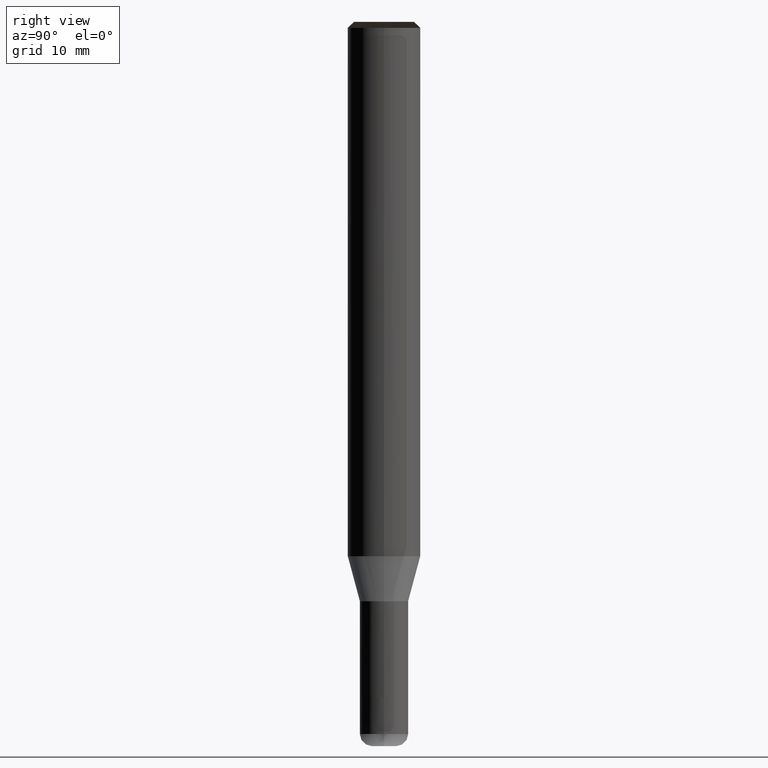
[diagram: clean part render]
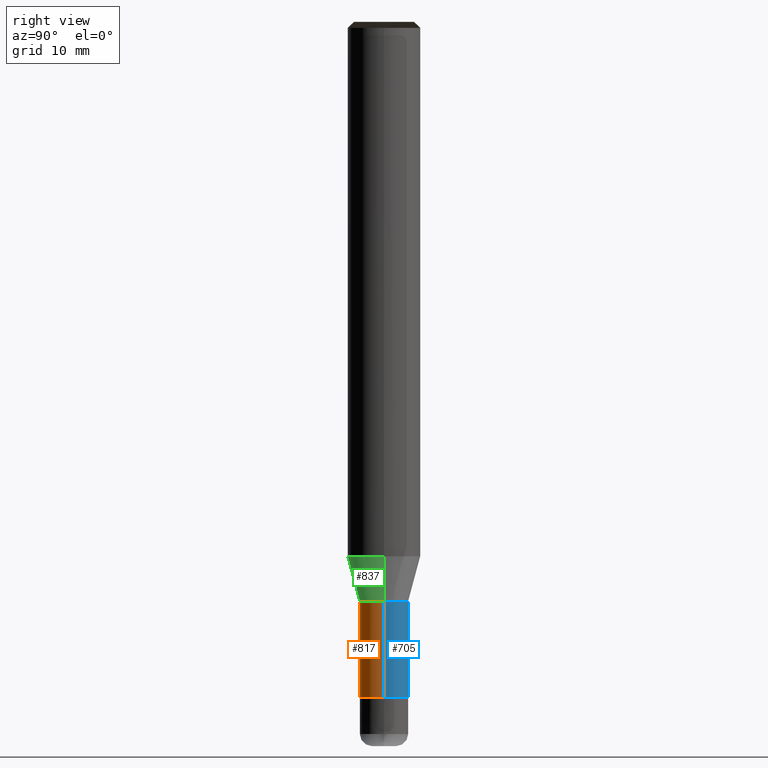
[diagram: same view with three faces highlighted in distinct colors, each labeled with its STEP entity id]
A machine part, right view with three faces highlighted in distinct colors.
Their STEP definitions:

[orange] entity #817 — the highlighted face is a freeform B-spline surface patch.
#464=CARTESIAN_POINT('',(2.0,0.0,-11.732050807569));
#468=CARTESIAN_POINT('',(-2.0,0.0,-11.732050807569));
#479=CARTESIAN_POINT('',(-2.0,-2.0,-11.732050807569));
#480=CARTESIAN_POINT('',(0.0,-2.0,-11.732050807569));
#481=CARTESIAN_POINT('',(2.0,-2.0,-11.732050807569));
#482=CARTESIAN_POINT('',(2.0,0.0,-3.732050807569));
#486=CARTESIAN_POINT('',(-2.0,0.0,-3.732050807569));
#503=CARTESIAN_POINT('',(-2.0,-2.0,-3.732050807569));
#504=CARTESIAN_POINT('',(0.0,-2.0,-3.732050807569));
#505=CARTESIAN_POINT('',(2.0,-2.0,-3.732050807569));
#798=(
BOUNDED_SURFACE()
B_SPLINE_SURFACE(1,2,(
(#468,#479,#480,#481,#464),
(#486,#503,#504,#505,#482)
), .UNSPECIFIED.,.F.,.F.,.F.)
B_SPLINE_SURFACE_WITH_KNOTS((2,2),(3,2,3),(
0.0,1.0),(
0.0,0.5,1.0), .UNSPECIFIED.)
GEOMETRIC_REPRESENTATION_ITEM()
RATIONAL_B_SPLINE_SURFACE(((1.0,0.707106781187,1.0,0.707106781187,1.0),
(1.0,0.707106781187,1.0,0.707106781187,1.0)
))
REPRESENTATION_ITEM('')
SURFACE()
);
#799=(
BOUNDED_CURVE()
B_SPLINE_CURVE(1,(#486,#468),.UNSPECIFIED.,.F.,.F.)
B_SPLINE_CURVE_WITH_KNOTS((2,2),
(0.0,1.0),.UNSPECIFIED.)
CURVE()
GEOMETRIC_REPRESENTATION_ITEM()
RATIONAL_B_SPLINE_CURVE((1.0,1.0))
REPRESENTATION_ITEM('')
);
#800=(
BOUNDED_CURVE()
B_SPLINE_CURVE(2,(#468,#479,#480,#481,#464),.UNSPECIFIED.,.F.,.F.)
B_SPLINE_CURVE_WITH_KNOTS((3,2,3),
(0.0,0.5,1.0),.UNSPECIFIED.)
CURVE()
GEOMETRIC_REPRESENTATION_ITEM()
RATIONAL_B_SPLINE_CURVE((1.0,0.707106781187,1.0,0.707106781187,1.0))
REPRESENTATION_ITEM('')
);
#801=(
BOUNDED_CURVE()
B_SPLINE_CURVE(1,(#464,#482),.UNSPECIFIED.,.F.,.F.)
B_SPLINE_CURVE_WITH_KNOTS((2,2),
(0.0,1.0),.UNSPECIFIED.)
CURVE()
GEOMETRIC_REPRESENTATION_ITEM()
RATIONAL_B_SPLINE_CURVE((1.0,1.0))
REPRESENTATION_ITEM('')
);
#802=(
BOUNDED_CURVE()
B_SPLINE_CURVE(2,(#482,#505,#504,#503,#486),.UNSPECIFIED.,.F.,.F.)
B_SPLINE_CURVE_WITH_KNOTS((3,2,3),
(0.0,0.5,1.0),.UNSPECIFIED.)
CURVE()
GEOMETRIC_REPRESENTATION_ITEM()
RATIONAL_B_SPLINE_CURVE((1.0,0.707106781187,1.0,0.707106781187,1.0))
REPRESENTATION_ITEM('')
);
#803=VERTEX_POINT('',#464);
#804=VERTEX_POINT('',#468);
#805=VERTEX_POINT('',#482);
#806=VERTEX_POINT('',#486);
#807=EDGE_CURVE('',#806,#804,#799,.T.);
#808=EDGE_CURVE('',#804,#803,#800,.T.);
#809=EDGE_CURVE('',#803,#805,#801,.T.);
#810=EDGE_CURVE('',#805,#806,#802,.T.);
#811=ORIENTED_EDGE('',*,*,#807,.T.);
#812=ORIENTED_EDGE('',*,*,#808,.T.);
#813=ORIENTED_EDGE('',*,*,#809,.T.);
#814=ORIENTED_EDGE('',*,*,#810,.T.);
#815=EDGE_LOOP('',(#811,#812,#813,#814));
#816=FACE_OUTER_BOUND('',#815,.T.);
#817=ADVANCED_FACE('',(#816),#798,.T.);

[blue] entity #705 — the highlighted face is a freeform B-spline surface patch.
#464=CARTESIAN_POINT('',(2.0,0.0,-11.732050807569));
#465=CARTESIAN_POINT('',(2.0,2.0,-11.732050807569));
#466=CARTESIAN_POINT('',(0.0,2.0,-11.732050807569));
#467=CARTESIAN_POINT('',(-2.0,2.0,-11.732050807569));
#468=CARTESIAN_POINT('',(-2.0,0.0,-11.732050807569));
#482=CARTESIAN_POINT('',(2.0,0.0,-3.732050807569));
#483=CARTESIAN_POINT('',(2.0,2.0,-3.732050807569));
#484=CARTESIAN_POINT('',(0.0,2.0,-3.732050807569));
#485=CARTESIAN_POINT('',(-2.0,2.0,-3.732050807569));
#486=CARTESIAN_POINT('',(-2.0,0.0,-3.732050807569));
#686=(
BOUNDED_SURFACE()
B_SPLINE_SURFACE(1,2,(
(#464,#465,#466,#467,#468),
(#482,#483,#484,#485,#486)
), .UNSPECIFIED.,.F.,.F.,.F.)
B_SPLINE_SURFACE_WITH_KNOTS((2,2),(3,2,3),(
0.0,1.0),(
0.0,0.5,1.0), .UNSPECIFIED.)
GEOMETRIC_REPRESENTATION_ITEM()
RATIONAL_B_SPLINE_SURFACE(((1.0,0.707106781187,1.0,0.707106781187,1.0),
(1.0,0.707106781187,1.0,0.707106781187,1.0)
))
REPRESENTATION_ITEM('')
SURFACE()
);
#687=(
BOUNDED_CURVE()
B_SPLINE_CURVE(2,(#482,#483,#484,#485,#486),.UNSPECIFIED.,.F.,.F.)
B_SPLINE_CURVE_WITH_KNOTS((3,2,3),
(0.0,0.5,1.0),.UNSPECIFIED.)
CURVE()
GEOMETRIC_REPRESENTATION_ITEM()
RATIONAL_B_SPLINE_CURVE((1.0,0.707106781187,1.0,0.707106781187,1.0))
REPRESENTATION_ITEM('')
);
#688=(
BOUNDED_CURVE()
B_SPLINE_CURVE(1,(#486,#468),.UNSPECIFIED.,.F.,.F.)
B_SPLINE_CURVE_WITH_KNOTS((2,2),
(0.0,1.0),.UNSPECIFIED.)
CURVE()
GEOMETRIC_REPRESENTATION_ITEM()
RATIONAL_B_SPLINE_CURVE((1.0,1.0))
REPRESENTATION_ITEM('')
);
#689=(
BOUNDED_CURVE()
B_SPLINE_CURVE(2,(#468,#467,#466,#465,#464),.UNSPECIFIED.,.F.,.F.)
B_SPLINE_CURVE_WITH_KNOTS((3,2,3),
(0.0,0.5,1.0),.UNSPECIFIED.)
CURVE()
GEOMETRIC_REPRESENTATION_ITEM()
RATIONAL_B_SPLINE_CURVE((1.0,0.707106781187,1.0,0.707106781187,1.0))
REPRESENTATION_ITEM('')
);
#690=(
BOUNDED_CURVE()
B_SPLINE_CURVE(1,(#464,#482),.UNSPECIFIED.,.F.,.F.)
B_SPLINE_CURVE_WITH_KNOTS((2,2),
(0.0,1.0),.UNSPECIFIED.)
CURVE()
GEOMETRIC_REPRESENTATION_ITEM()
RATIONAL_B_SPLINE_CURVE((1.0,1.0))
REPRESENTATION_ITEM('')
);
#691=VERTEX_POINT('',#464);
#692=VERTEX_POINT('',#468);
#693=VERTEX_POINT('',#482);
#694=VERTEX_POINT('',#486);
#695=EDGE_CURVE('',#693,#694,#687,.T.);
#696=EDGE_CURVE('',#694,#692,#688,.T.);
#697=EDGE_CURVE('',#692,#691,#689,.T.);
#698=EDGE_CURVE('',#691,#693,#690,.T.);
#699=ORIENTED_EDGE('',*,*,#695,.T.);
#700=ORIENTED_EDGE('',*,*,#696,.T.);
#701=ORIENTED_EDGE('',*,*,#697,.T.);
#702=ORIENTED_EDGE('',*,*,#698,.T.);
#703=EDGE_LOOP('',(#699,#700,#701,#702));
#704=FACE_OUTER_BOUND('',#703,.T.);
#705=ADVANCED_FACE('',(#704),#686,.T.);

[green] entity #837 — the highlighted face is a freeform B-spline surface patch.
#482=CARTESIAN_POINT('',(2.0,0.0,-3.732050807569));
#486=CARTESIAN_POINT('',(-2.0,0.0,-3.732050807569));
#487=CARTESIAN_POINT('',(3.0,0.0,0.0));
#491=CARTESIAN_POINT('',(-3.0,0.0,0.0));
#503=CARTESIAN_POINT('',(-2.0,-2.0,-3.732050807569));
#504=CARTESIAN_POINT('',(0.0,-2.0,-3.732050807569));
#505=CARTESIAN_POINT('',(2.0,-2.0,-3.732050807569));
#506=CARTESIAN_POINT('',(-3.0,-3.0,0.0));
#507=CARTESIAN_POINT('',(0.0,-3.0,0.0));
#508=CARTESIAN_POINT('',(3.0,-3.0,0.0));
#818=(
BOUNDED_SURFACE()
B_SPLINE_SURFACE(1,2,(
(#486,#503,#504,#505,#482),
(#491,#506,#507,#508,#487)
), .UNSPECIFIED.,.F.,.F.,.F.)
B_SPLINE_SURFACE_WITH_KNOTS((2,2),(3,2,3),(
0.0,1.0),(
0.0,0.5,1.0), .UNSPECIFIED.)
GEOMETRIC_REPRESENTATION_ITEM()
RATIONAL_B_SPLINE_SURFACE(((1.0,0.707106781187,1.0,0.707106781187,1.0),
(1.0,0.707106781187,1.0,0.707106781187,1.0)
))
REPRESENTATION_ITEM('')
SURFACE()
);
#819=(
BOUNDED_CURVE()
B_SPLINE_CURVE(1,(#491,#486),.UNSPECIFIED.,.F.,.F.)
B_SPLINE_CURVE_WITH_KNOTS((2,2),
(0.0,1.0),.UNSPECIFIED.)
CURVE()
GEOMETRIC_REPRESENTATION_ITEM()
RATIONAL_B_SPLINE_CURVE((1.0,1.0))
REPRESENTATION_ITEM('')
);
#820=(
BOUNDED_CURVE()
B_SPLINE_CURVE(2,(#486,#503,#504,#505,#482),.UNSPECIFIED.,.F.,.F.)
B_SPLINE_CURVE_WITH_KNOTS((3,2,3),
(0.0,0.5,1.0),.UNSPECIFIED.)
CURVE()
GEOMETRIC_REPRESENTATION_ITEM()
RATIONAL_B_SPLINE_CURVE((1.0,0.707106781187,1.0,0.707106781187,1.0))
REPRESENTATION_ITEM('')
);
#821=(
BOUNDED_CURVE()
B_SPLINE_CURVE(1,(#482,#487),.UNSPECIFIED.,.F.,.F.)
B_SPLINE_CURVE_WITH_KNOTS((2,2),
(0.0,1.0),.UNSPECIFIED.)
CURVE()
GEOMETRIC_REPRESENTATION_ITEM()
RATIONAL_B_SPLINE_CURVE((1.0,1.0))
REPRESENTATION_ITEM('')
);
#822=(
BOUNDED_CURVE()
B_SPLINE_CURVE(2,(#487,#508,#507,#506,#491),.UNSPECIFIED.,.F.,.F.)
B_SPLINE_CURVE_WITH_KNOTS((3,2,3),
(0.0,0.5,1.0),.UNSPECIFIED.)
CURVE()
GEOMETRIC_REPRESENTATION_ITEM()
RATIONAL_B_SPLINE_CURVE((1.0,0.707106781187,1.0,0.707106781187,1.0))
REPRESENTATION_ITEM('')
);
#823=VERTEX_POINT('',#482);
#824=VERTEX_POINT('',#486);
#825=VERTEX_POINT('',#487);
#826=VERTEX_POINT('',#491);
#827=EDGE_CURVE('',#826,#824,#819,.T.);
#828=EDGE_CURVE('',#824,#823,#820,.T.);
#829=EDGE_CURVE('',#823,#825,#821,.T.);
#830=EDGE_CURVE('',#825,#826,#822,.T.);
#831=ORIENTED_EDGE('',*,*,#827,.T.);
#832=ORIENTED_EDGE('',*,*,#828,.T.);
#833=ORIENTED_EDGE('',*,*,#829,.T.);
#834=ORIENTED_EDGE('',*,*,#830,.T.);
#835=EDGE_LOOP('',(#831,#832,#833,#834));
#836=FACE_OUTER_BOUND('',#835,.T.);
#837=ADVANCED_FACE('',(#836),#818,.T.);